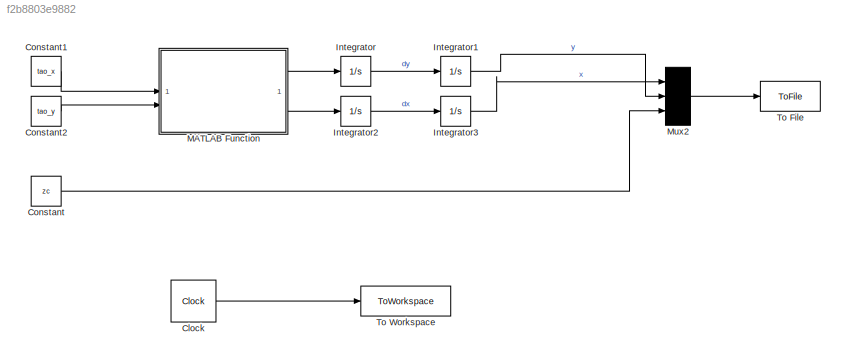
MODEL slx_f2b8803e9882
KIND model
CONFIG AbsTol = auto
CONFIG EnableMultiTasking = off
CONFIG FixedStep = auto
CONFIG MaxStep = auto
CONFIG MinStep = auto
CONFIG RelTol = 1e-3
CONFIG SampleTimeConstraint = Unconstrained
CONFIG SolverName = ode4
CONFIG StartTime = 0.0
CONFIG StopTime = t_stop
BLOCK [Clock] Clock
  DisplayTime = on
BLOCK [Constant] Constant
  Value = zc
BLOCK [Constant] Constant1
  Value = tao_x
BLOCK [Constant] Constant2
  Value = tao_y
BLOCK [Integrator] Integrator
BLOCK [Integrator] Integrator1
BLOCK [Integrator] Integrator2
BLOCK [Integrator] Integrator3
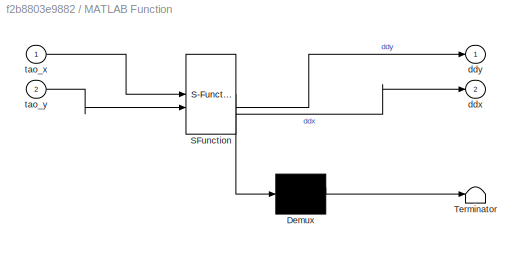
BLOCK [SubSystem] MATLAB Function
  ErrorFcn = Stateflow.Translate.translate
  PermitHierarchicalResolution = ExplicitOnly
  SFBlockType = MATLAB Function
  TreatAsAtomicUnit = on
BLOCK [Demux] MATLAB Function/ Demux 
  Outputs = 1
BLOCK [S-Function] MATLAB Function/ SFunction 
  EnableBusSupport = on
  FunctionName = sf_sfun
  PortCounts = [2 3]
  SFcnIsStateOwnerBlock = off
  SFunctionDeploymentMode = off
  Tag = Stateflow S-Function 2
BLOCK [Terminator] MATLAB Function/ Terminator 
BLOCK [Outport] MATLAB Function/ddx
  Port = 2
BLOCK [Outport] MATLAB Function/ddy
BLOCK [Inport] MATLAB Function/tao_x
BLOCK [Inport] MATLAB Function/tao_y
  Port = 2
BLOCK [Mux] Mux2
  DisplayOption = bar
  Inputs = 3
BLOCK [ToFile] To File
  Filename = output.mat
BLOCK [ToWorkspace] To Workspace
  FixptAsFi = on
  MaxDataPoints = inf
  SampleTime = -1
  SaveFormat = Timeseries
  VariableName = simout
LINE Clock:1 -> To Workspace:1
LINE Constant1:1 -> MATLAB Function:1
LINE Constant2:1 -> MATLAB Function:2
LINE Constant:1 -> Mux2:3
LINE Integrator1:1 -> Mux2:2
LINE Integrator2:1 -> Integrator3:1
LINE Integrator3:1 -> Mux2:1
LINE Integrator:1 -> Integrator1:1
LINE MATLAB Function:1 -> Integrator:1
LINE MATLAB Function:2 -> Integrator2:1
LINE Mux2:1 -> To File:1
CHART MATLAB Function states=1 transitions=1
  STATE_LABEL 'eML_blk_kernel()'
  STATE_LABEL 'SCRIPT:\nfunction [ddy,ddx] = fcn(tao_x,tao_y)\ng=9.8;\nzc=0.154;     %154 cm\nm=58;       %58 kg\nx=1;\ny=2;\nddy= ((g/zc)*y - (1/(m*zc))*tao_x);\nddx= ((g/zc)*x +(1/(m*zc))*tao_y);\nend'
CHART  states=0 transitions=0
